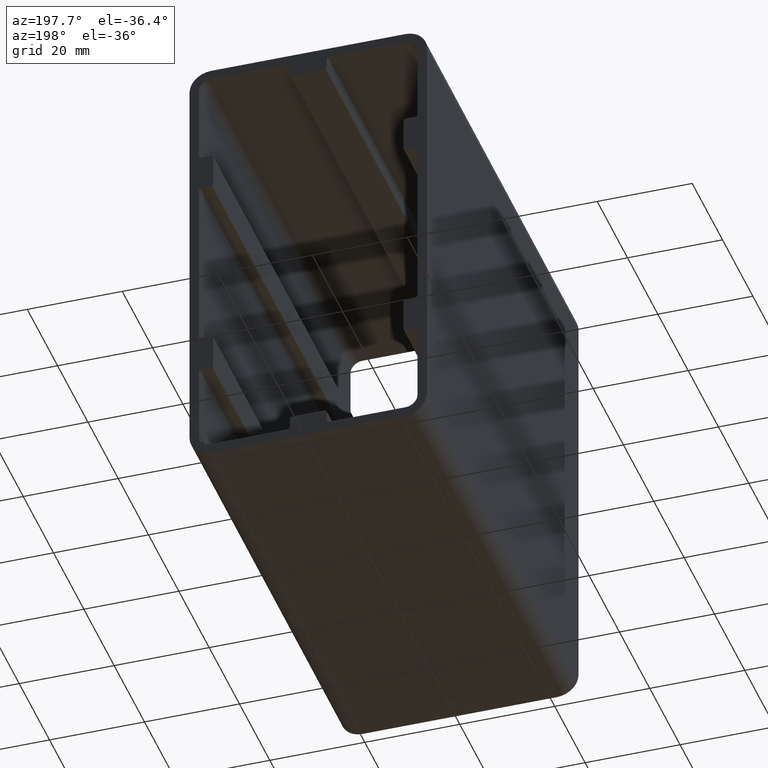
[diagram: clean part render]
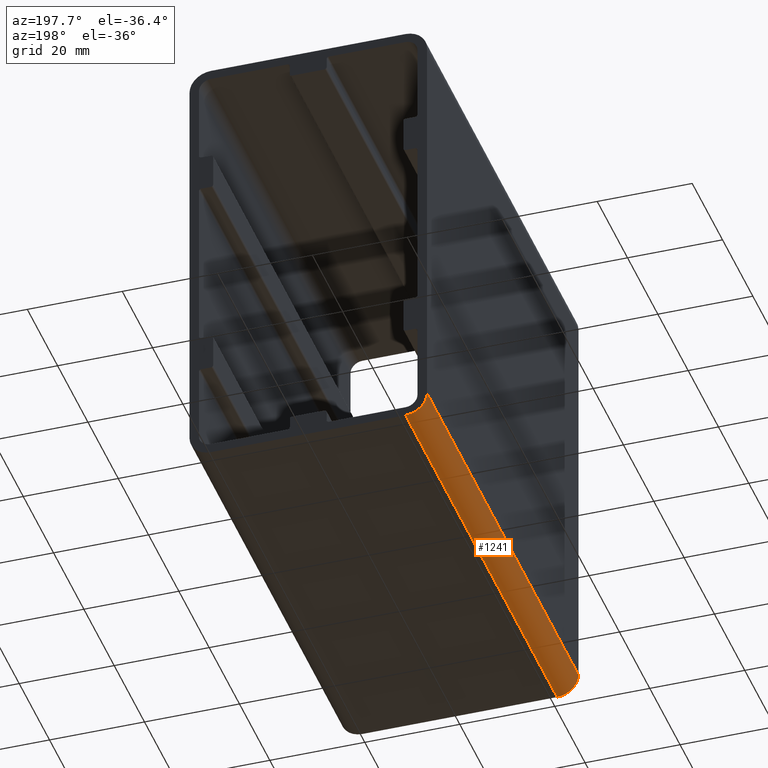
[diagram: same view with one face highlighted and labeled with its STEP entity id]
A machine part, auxiliary view. The second image highlights one B-rep face of the part: STEP entity #1241.
In plain terms, the highlighted cylindrical surface (edge-blend (fillet) strip) has radius 4.5 mm, axis along (0, 1, 0).
Its self-contained STEP definition (entity closure, byte-faithful):
#51=FACE_OUTER_BOUND('',#117,.T.);
#117=EDGE_LOOP('',(#825,#826,#827,#828));
#185=LINE('',#1853,#313);
#186=LINE('',#1856,#314);
#313=VECTOR('',#1463,10.);
#314=VECTOR('',#1466,10.);
#441=CIRCLE('',#1328,4.5);
#442=CIRCLE('',#1329,4.5);
#505=VERTEX_POINT('',#1849);
#506=VERTEX_POINT('',#1850);
#507=VERTEX_POINT('',#1852);
#508=VERTEX_POINT('',#1854);
#633=EDGE_CURVE('',#505,#506,#441,.T.);
#634=EDGE_CURVE('',#506,#507,#185,.T.);
#635=EDGE_CURVE('',#507,#508,#442,.T.);
#636=EDGE_CURVE('',#508,#505,#186,.T.);
#825=ORIENTED_EDGE('',*,*,#633,.T.);
#826=ORIENTED_EDGE('',*,*,#634,.T.);
#827=ORIENTED_EDGE('',*,*,#635,.T.);
#828=ORIENTED_EDGE('',*,*,#636,.T.);
#1209=CYLINDRICAL_SURFACE('',#1327,4.5);
#1241=ADVANCED_FACE('',(#51),#1209,.T.);
#1327=AXIS2_PLACEMENT_3D('',#1848,#1459,#1460);
#1328=AXIS2_PLACEMENT_3D('',#1851,#1461,#1462);
#1329=AXIS2_PLACEMENT_3D('',#1855,#1464,#1465);
#1459=DIRECTION('center_axis',(0.,1.,0.));
#1460=DIRECTION('ref_axis',(-0.707106781186549,0.,-0.707106781186546));
#1461=DIRECTION('center_axis',(0.,-1.,0.));
#1462=DIRECTION('ref_axis',(-0.707106781186549,0.,-0.707106781186546));
#1463=DIRECTION('',(0.,-1.,0.));
#1464=DIRECTION('center_axis',(0.,1.,0.));
#1465=DIRECTION('ref_axis',(-0.707106781186549,0.,-0.707106781186546));
#1466=DIRECTION('',(0.,1.,0.));
#1848=CARTESIAN_POINT('Origin',(-20.5,0.,-43.));
#1849=CARTESIAN_POINT('',(-25.,100.,-43.));
#1850=CARTESIAN_POINT('',(-20.5,100.,-47.5));
#1851=CARTESIAN_POINT('Origin',(-20.5,100.,-43.));
#1852=CARTESIAN_POINT('',(-20.5,0.,-47.5));
#1853=CARTESIAN_POINT('',(-20.5,0.,-47.5));
#1854=CARTESIAN_POINT('',(-25.,0.,-43.));
#1855=CARTESIAN_POINT('Origin',(-20.5,0.,-43.));
#1856=CARTESIAN_POINT('',(-25.,0.,-43.));